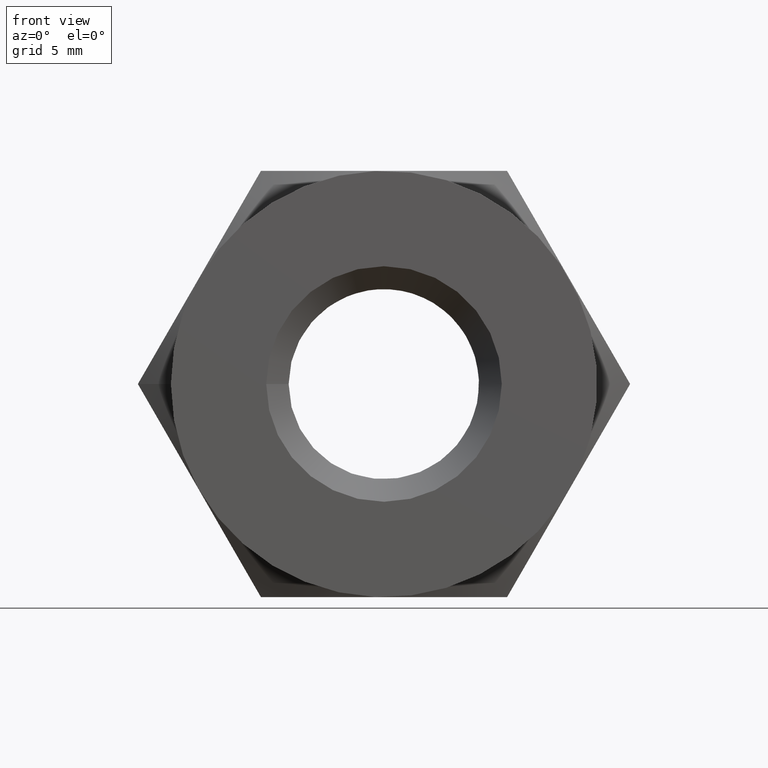
[diagram: clean part render]
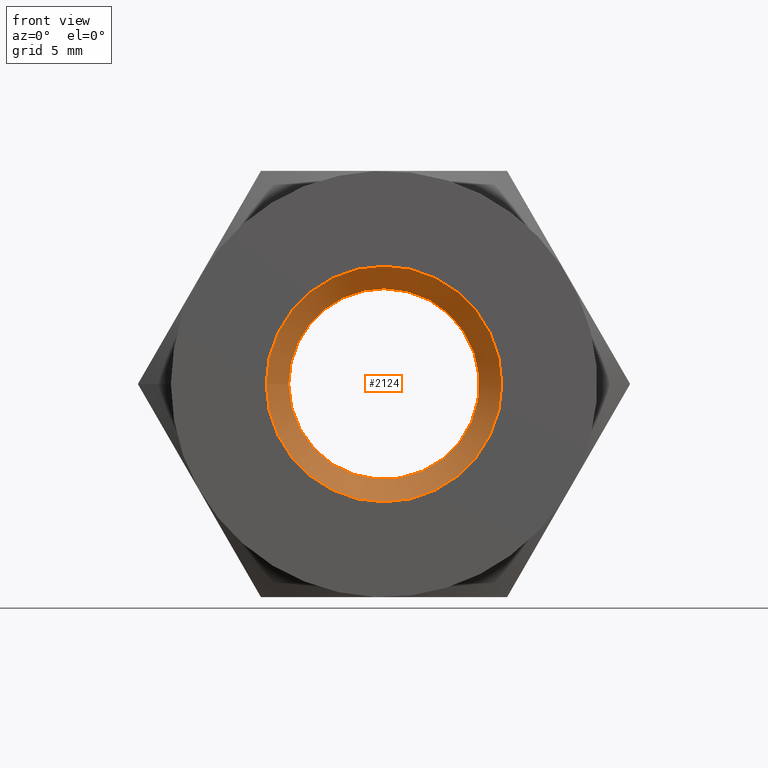
[diagram: same view with one face highlighted and labeled with its STEP entity id]
A machine part, front view. The second image highlights one B-rep face of the part: STEP entity #2124.
In plain terms, the highlighted conical surface has half-angle 45 deg.
Its self-contained STEP definition (entity closure, byte-faithful):
#163 = CIRCLE ( 'NONE', #4290, 4.249999999999997335 ) ;
#461 = DIRECTION ( 'NONE',  ( -1.000000000000000000, -4.592425496802572986E-17, 0.000000000000000000 ) ) ;
#651 = EDGE_CURVE ( 'NONE', #8743, #8743, #821, .T. ) ;
#789 = CONICAL_SURFACE ( 'NONE', #6373, 4.249999999999997335, 0.7853981633974512766 ) ;
#821 = CIRCLE ( 'NONE', #15325, 5.250000000000007994 ) ;
#1113 = DIRECTION ( 'NONE',  ( 0.000000000000000000, 0.000000000000000000, -1.000000000000000000 ) ) ;
#1716 = DIRECTION ( 'NONE',  ( -4.592425496802571754E-17, 1.000000000000000000, -0.000000000000000000 ) ) ;
#2124 = ADVANCED_FACE ( 'NONE', ( #12073, #3840 ), #789, .F. ) ;
#3306 = CARTESIAN_POINT ( 'NONE',  ( 0.000000000000000000, 1.000000000000004219, 4.249999999999997335 ) ) ;
#3840 = FACE_BOUND ( 'NONE', #4490, .T. ) ;
#4161 = DIRECTION ( 'NONE',  ( 0.000000000000000000, -1.000000000000000000, 0.000000000000000000 ) ) ;
#4290 = AXIS2_PLACEMENT_3D ( 'NONE', #11279, #4161, #6368 ) ;
#4490 = EDGE_LOOP ( 'NONE', ( #11554 ) ) ;
#4524 = CARTESIAN_POINT ( 'NONE',  ( -5.250000000000007994, -4.592425496802575944E-16, 0.000000000000000000 ) ) ;
#4764 = ORIENTED_EDGE ( 'NONE', *, *, #651, .F. ) ;
#6368 = DIRECTION ( 'NONE',  ( 0.000000000000000000, 0.000000000000000000, 1.000000000000000000 ) ) ;
#6373 = AXIS2_PLACEMENT_3D ( 'NONE', #8061, #13205, #1113 ) ;
#7669 = CARTESIAN_POINT ( 'NONE',  ( 0.000000000000000000, -2.181402110981221552E-16, 0.000000000000000000 ) ) ;
#8061 = CARTESIAN_POINT ( 'NONE',  ( 0.000000000000000000, 1.000000000000004219, 0.000000000000000000 ) ) ;
#8222 = EDGE_CURVE ( 'NONE', #10421, #10421, #163, .T. ) ;
#8743 = VERTEX_POINT ( 'NONE', #4524 ) ;
#10421 = VERTEX_POINT ( 'NONE', #3306 ) ;
#11279 = CARTESIAN_POINT ( 'NONE',  ( 0.000000000000000000, 1.000000000000004219, 0.000000000000000000 ) ) ;
#11554 = ORIENTED_EDGE ( 'NONE', *, *, #8222, .F. ) ;
#12073 = FACE_OUTER_BOUND ( 'NONE', #14755, .T. ) ;
#13205 = DIRECTION ( 'NONE',  ( 0.000000000000000000, -1.000000000000000000, 0.000000000000000000 ) ) ;
#14755 = EDGE_LOOP ( 'NONE', ( #4764 ) ) ;
#15325 = AXIS2_PLACEMENT_3D ( 'NONE', #7669, #1716, #461 ) ;